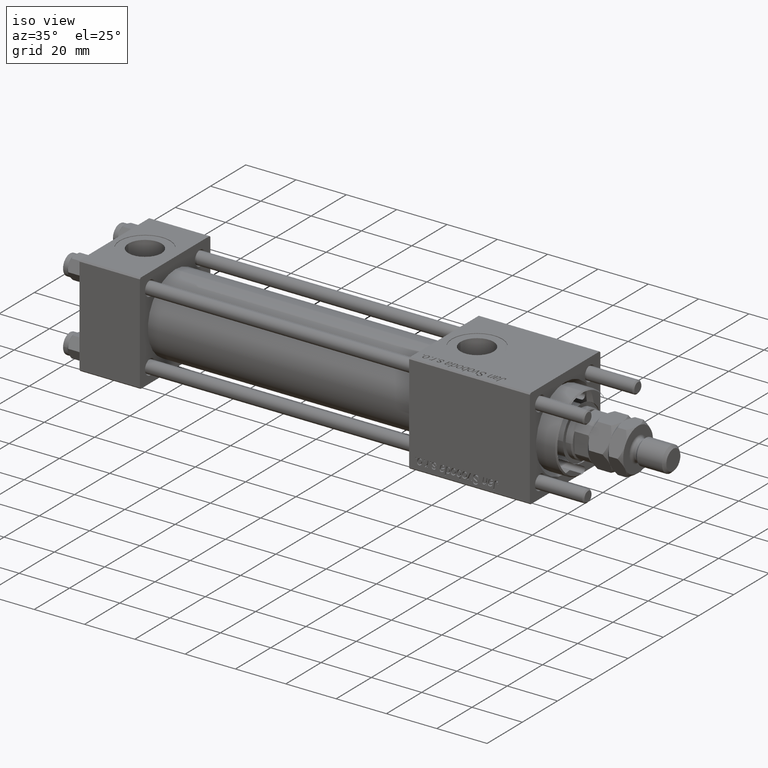
[diagram: clean part render]
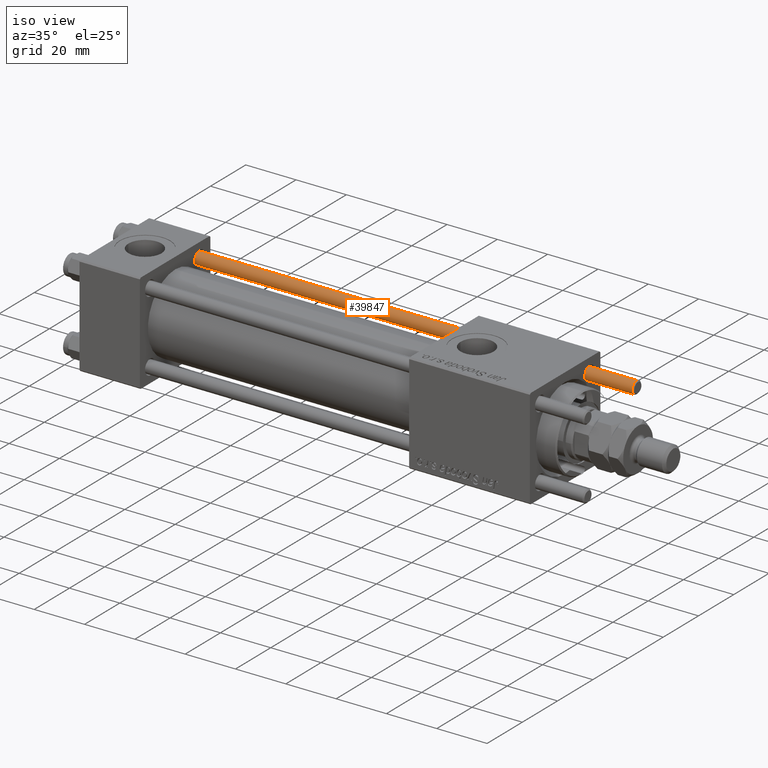
[diagram: same view with one face highlighted and labeled with its STEP entity id]
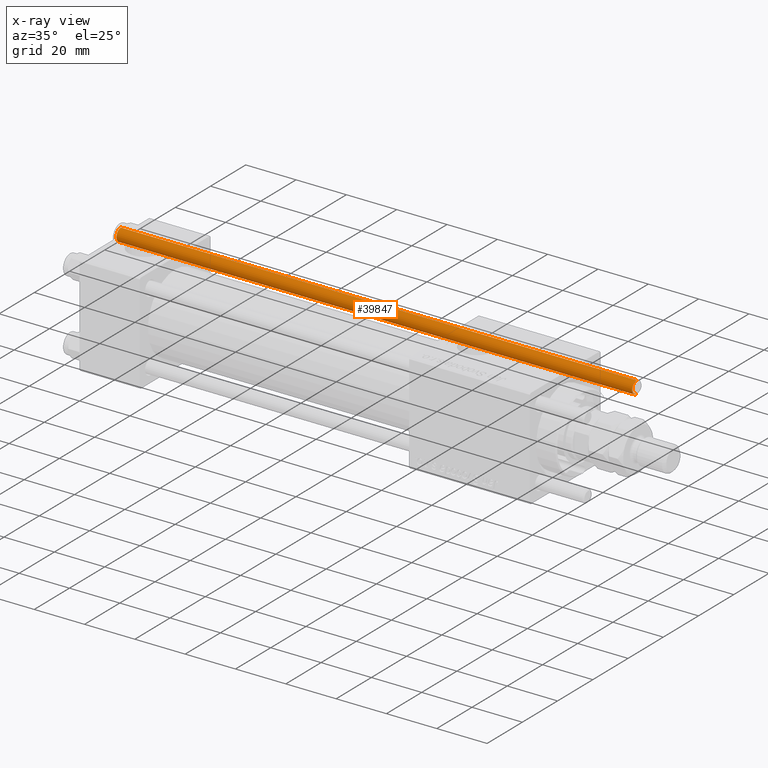
[diagram: x-ray of the same camera — body ghosted, the highlighted face saturated]
A machine part, iso view. The second image highlights one B-rep face of the part: STEP entity #39847.
The next image is the same camera in x-ray: the body ghosted, the highlighted face saturated — about 0% of this face is hidden behind the body in this view.
In plain terms, the highlighted cylindrical surface (edge-blend (fillet) strip) has radius 2.5 mm, axis along (1, -0, -0).
Its self-contained STEP definition (entity closure, byte-faithful):
#526 = DIRECTION ( 'NONE',  ( 1.000000000000000000, 0.000000000000000000, 0.000000000000000000 ) ) ;
#1268 = ORIENTED_EDGE ( 'NONE', *, *, #10204, .T. ) ;
#6036 = CARTESIAN_POINT ( 'NONE',  ( 0.000000000000000000, 0.000000000000000000, 0.4999999999999726885 ) ) ;
#6518 = VECTOR ( 'NONE', #53488, 1000.000000000000000 ) ;
#7006 = EDGE_CURVE ( 'NONE', #45019, #34676, #15480, .T. ) ;
#9703 = DIRECTION ( 'NONE',  ( -0.000000000000000000, -0.000000000000000000, 1.000000000000000000 ) ) ;
#10204 = EDGE_CURVE ( 'NONE', #34676, #46057, #10452, .T. ) ;
#10452 = LINE ( 'NONE', #15025, #47809 ) ;
#15025 = CARTESIAN_POINT ( 'NONE',  ( -2.500000000000000000, 0.000000000000000000, 206.0000000000000000 ) ) ;
#15480 = CIRCLE ( 'NONE', #45704, 2.500000000000000000 ) ;
#15928 = ORIENTED_EDGE ( 'NONE', *, *, #38708, .F. ) ;
#17268 = VERTEX_POINT ( 'NONE', #58739 ) ;
#21880 = FACE_OUTER_BOUND ( 'NONE', #50647, .T. ) ;
#22478 = CARTESIAN_POINT ( 'NONE',  ( 0.000000000000000000, 0.000000000000000000, 206.0000000000000000 ) ) ;
#27621 = AXIS2_PLACEMENT_3D ( 'NONE', #6036, #9703, #526 ) ;
#30808 = CARTESIAN_POINT ( 'NONE',  ( 2.500000000000000000, 3.061616997868383141E-16, 206.0000000000000000 ) ) ;
#31561 = ORIENTED_EDGE ( 'NONE', *, *, #7006, .T. ) ;
#32886 = AXIS2_PLACEMENT_3D ( 'NONE', #22478, #40534, #35952 ) ;
#34676 = VERTEX_POINT ( 'NONE', #51318 ) ;
#34836 = LINE ( 'NONE', #30808, #6518 ) ;
#35952 = DIRECTION ( 'NONE',  ( -1.000000000000000000, 0.000000000000000000, 0.000000000000000000 ) ) ;
#38708 = EDGE_CURVE ( 'NONE', #45019, #17268, #34836, .T. ) ;
#39847 = ADVANCED_FACE ( 'NONE', ( #21880 ), #50934, .T. ) ;
#40228 = CARTESIAN_POINT ( 'NONE',  ( 2.500000000000000000, 3.061616997868383141E-16, 205.5000000000000284 ) ) ;
#40534 = DIRECTION ( 'NONE',  ( -0.000000000000000000, -0.000000000000000000, -1.000000000000000000 ) ) ;
#45019 = VERTEX_POINT ( 'NONE', #40228 ) ;
#45243 = CARTESIAN_POINT ( 'NONE',  ( 0.000000000000000000, 0.000000000000000000, 205.5000000000000284 ) ) ;
#45704 = AXIS2_PLACEMENT_3D ( 'NONE', #45243, #50145, #49243 ) ;
#46057 = VERTEX_POINT ( 'NONE', #48529 ) ;
#47809 = VECTOR ( 'NONE', #51717, 1000.000000000000000 ) ;
#48529 = CARTESIAN_POINT ( 'NONE',  ( -2.500000000000000000, 0.000000000000000000, 0.4999999999999726885 ) ) ;
#49243 = DIRECTION ( 'NONE',  ( 1.000000000000000000, 0.000000000000000000, 0.000000000000000000 ) ) ;
#49747 = ORIENTED_EDGE ( 'NONE', *, *, #58741, .T. ) ;
#50145 = DIRECTION ( 'NONE',  ( 0.000000000000000000, 0.000000000000000000, -1.000000000000000000 ) ) ;
#50647 = EDGE_LOOP ( 'NONE', ( #15928, #31561, #1268, #49747 ) ) ;
#50934 = CYLINDRICAL_SURFACE ( 'NONE', #32886, 2.500000000000000000 ) ;
#51318 = CARTESIAN_POINT ( 'NONE',  ( -2.500000000000000000, 0.000000000000000000, 205.5000000000000284 ) ) ;
#51717 = DIRECTION ( 'NONE',  ( -0.000000000000000000, -0.000000000000000000, -1.000000000000000000 ) ) ;
#53488 = DIRECTION ( 'NONE',  ( -0.000000000000000000, -0.000000000000000000, -1.000000000000000000 ) ) ;
#57901 = CIRCLE ( 'NONE', #27621, 2.500000000000000000 ) ;
#58739 = CARTESIAN_POINT ( 'NONE',  ( 2.500000000000000000, 3.061616997868383141E-16, 0.4999999999999726885 ) ) ;
#58741 = EDGE_CURVE ( 'NONE', #46057, #17268, #57901, .T. ) ;